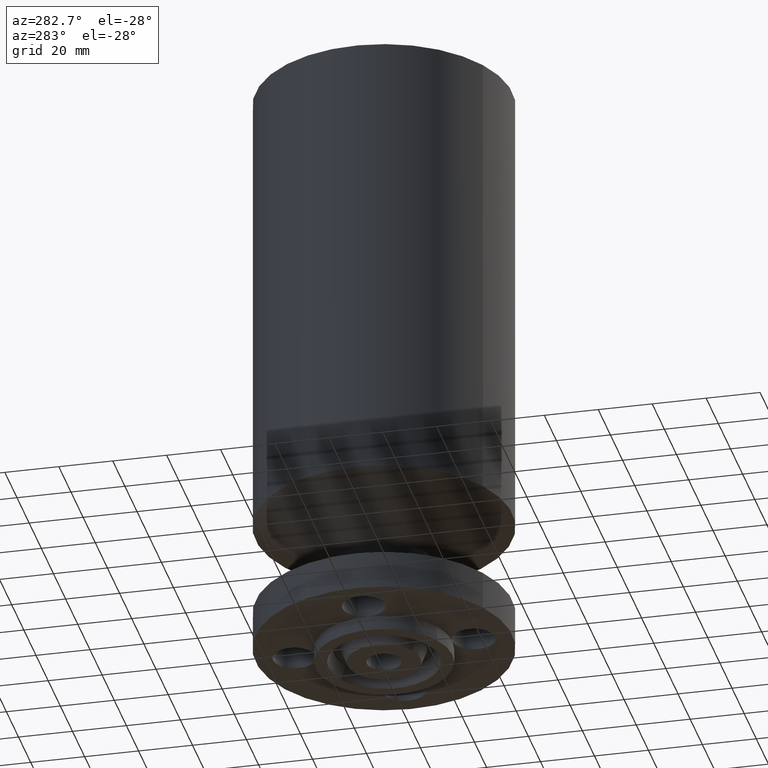
[diagram: clean part render]
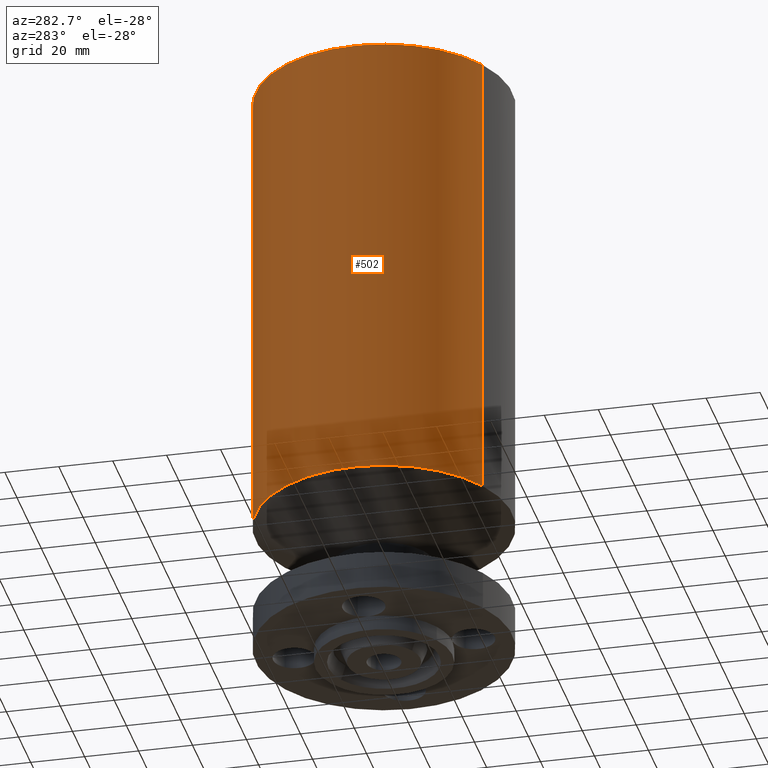
[diagram: same view with one face highlighted and labeled with its STEP entity id]
A machine part, auxiliary view. The second image highlights one B-rep face of the part: STEP entity #502.
In plain terms, the highlighted cylindrical surface (partial cylindrical patch) has radius 47.625 mm, axis along (0, 0, -1).
Its self-contained STEP definition (entity closure, byte-faithful):
#239=AXIS2_PLACEMENT_3D('Cylinder Axis2P3D',#236,#237,#238) ;
#455=AXIS2_PLACEMENT_3D('Circle Axis2P3D',#453,#454,$) ;
#493=AXIS2_PLACEMENT_3D('Circle Axis2P3D',#491,#492,$) ;
#236=CARTESIAN_POINT('Axis2P3D Location',(0.,0.,4.26550000002)) ;
#431=CARTESIAN_POINT('Vertex',(0.898922884886,1.64546730355,1.95951905285)) ;
#438=CARTESIAN_POINT('Vertex',(-0.898922884886,-1.64546730355,1.95951905285)) ;
#453=CARTESIAN_POINT('Axis2P3D Location',(0.,0.,1.95951905285)) ;
#465=CARTESIAN_POINT('Line Origine',(0.898922884886,1.64546730355,5.35475952644)) ;
#469=CARTESIAN_POINT('Vertex',(0.898922884886,1.64546730355,8.75000000003)) ;
#476=CARTESIAN_POINT('Vertex',(-0.898922884886,-1.64546730355,8.75000000003)) ;
#479=CARTESIAN_POINT('Line Origine',(-0.898922884886,-1.64546730355,5.35475952644)) ;
#491=CARTESIAN_POINT('Axis2P3D Location',(0.,0.,8.75000000003)) ;
#237=DIRECTION('Axis2P3D Direction',(0.,0.,-0.0393700787402)) ;
#238=DIRECTION('Axis2P3D XDirection',(-0.0188750212049,-0.0345504945626,0.)) ;
#454=DIRECTION('Axis2P3D Direction',(-0.,0.,0.0393700787402)) ;
#466=DIRECTION('Vector Direction',(0.,0.,-0.0393700787402)) ;
#480=DIRECTION('Vector Direction',(0.,0.,-0.0393700787402)) ;
#492=DIRECTION('Axis2P3D Direction',(0.,0.,-0.0393700787402)) ;
#467=VECTOR('Line Direction',#466,0.0393700787402) ;
#481=VECTOR('Line Direction',#480,0.0393700787402) ;
#497=ORIENTED_EDGE('',*,*,#457,.F.) ;
#498=ORIENTED_EDGE('',*,*,#483,.T.) ;
#499=ORIENTED_EDGE('',*,*,#495,.T.) ;
#500=ORIENTED_EDGE('',*,*,#471,.F.) ;
#502=ADVANCED_FACE('PartBody',(#501),#240,.T.) ;
#456=CIRCLE('generated circle',#455,1.87500000001) ;
#494=CIRCLE('generated circle',#493,1.87500000001) ;
#240=CYLINDRICAL_SURFACE('generated cylinder',#239,1.87500000001) ;
#457=EDGE_CURVE('',#439,#432,#456,.F.) ;
#471=EDGE_CURVE('',#432,#470,#468,.F.) ;
#483=EDGE_CURVE('',#439,#477,#482,.F.) ;
#495=EDGE_CURVE('',#477,#470,#494,.T.) ;
#496=EDGE_LOOP('',(#497,#498,#499,#500)) ;
#501=FACE_OUTER_BOUND('',#496,.T.) ;
#468=LINE('Line',#465,#467) ;
#482=LINE('Line',#479,#481) ;
#432=VERTEX_POINT('',#431) ;
#439=VERTEX_POINT('',#438) ;
#470=VERTEX_POINT('',#469) ;
#477=VERTEX_POINT('',#476) ;